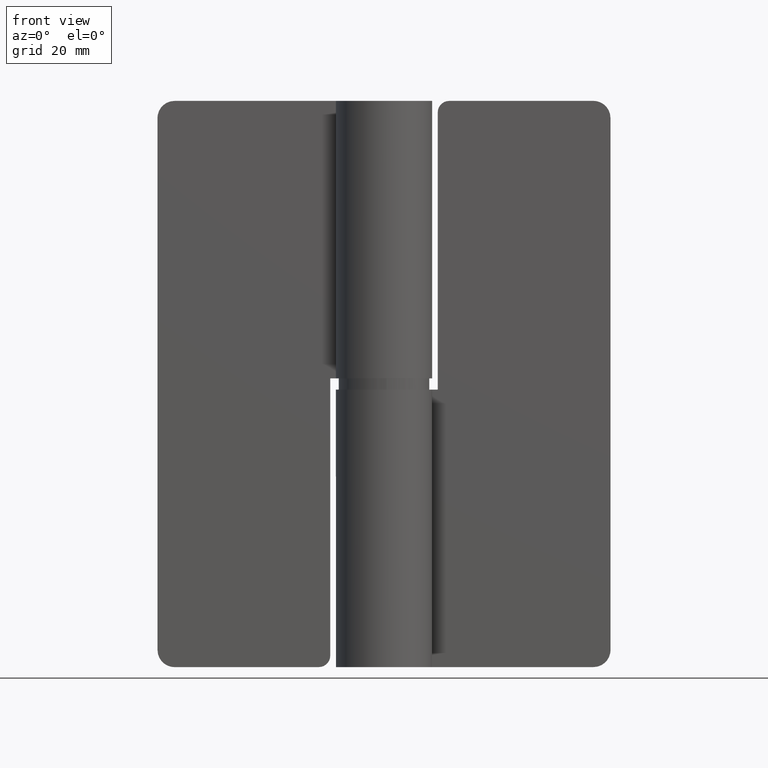
[diagram: clean part render]
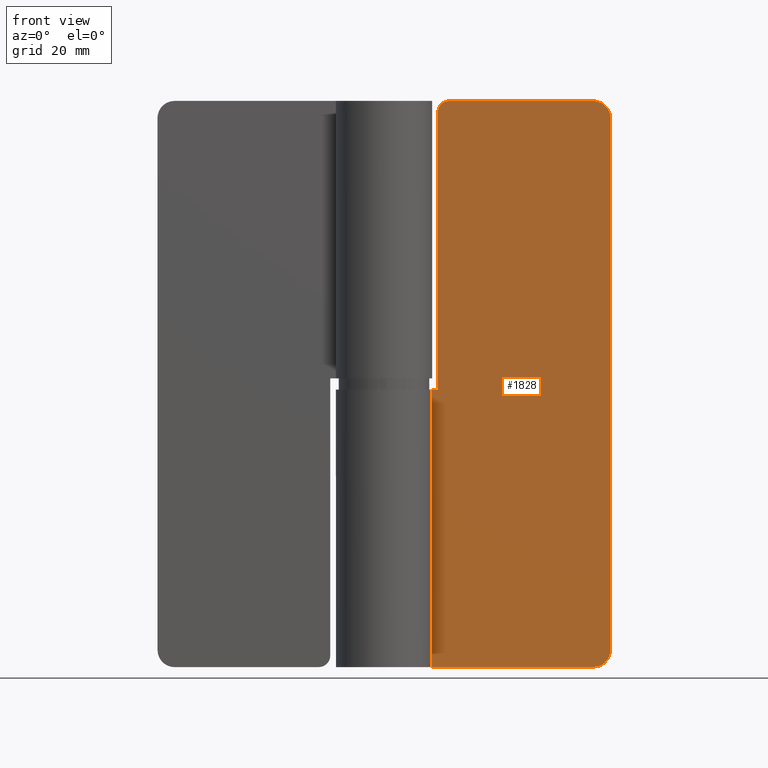
[diagram: same view with one face highlighted and labeled with its STEP entity id]
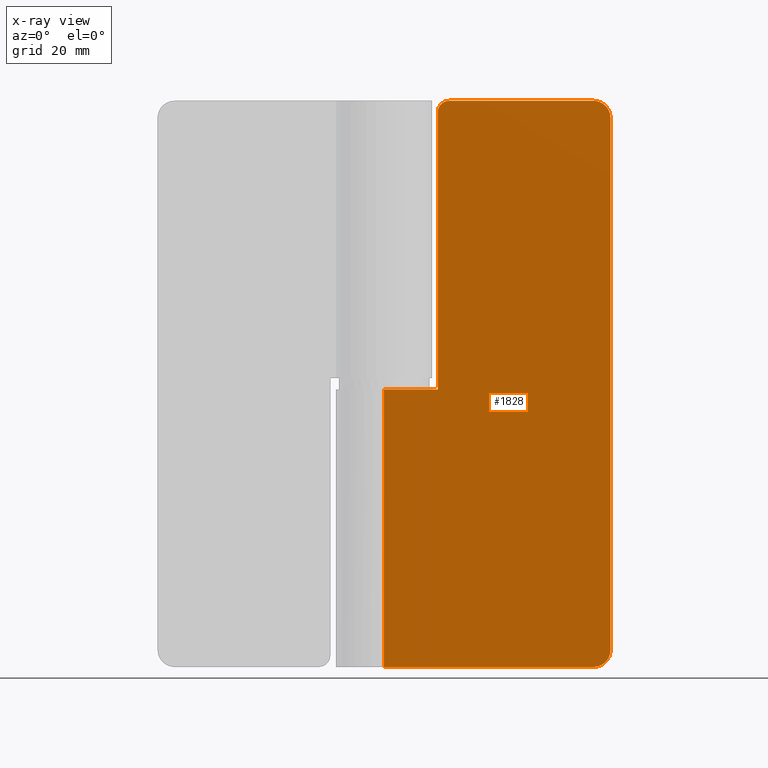
[diagram: x-ray of the same camera — body ghosted, the highlighted face saturated]
A machine part, front view. The second image highlights one B-rep face of the part: STEP entity #1828.
The next image is the same camera in x-ray: the body ghosted, the highlighted face saturated — about 0% of this face is hidden behind the body in this view.
In plain terms, the highlighted face is a freeform B-spline surface patch.
Its self-contained STEP definition (entity closure, byte-faithful):
#1349=CARTESIAN_POINT('',(40.000007999999802,4.0,97.0));
#1350=VERTEX_POINT('',#1349);
#1351=CARTESIAN_POINT('',(37.000007999999802,4.0,100.0));
#1352=VERTEX_POINT('',#1351);
#1353=CARTESIAN_POINT('',(40.000007999999802,4.0,97.0));
#1354=CARTESIAN_POINT('',(40.000007999999795,4.000000000000000,100.0));
#1355=CARTESIAN_POINT('',(37.000007999999802,4.0,100.0));
#1363=(BOUNDED_CURVE()B_SPLINE_CURVE(2,(#1353,#1354,#1355),.UNSPECIFIED.,.F.,.U.)CURVE()GEOMETRIC_REPRESENTATION_ITEM()QUASI_UNIFORM_CURVE()RATIONAL_B_SPLINE_CURVE((1.0,0.707106781186548,1.0))REPRESENTATION_ITEM(''));
#1364=EDGE_CURVE('',#1350,#1352,#1363,.T.);
#1410=CARTESIAN_POINT('',(37.000007999999802,4.0,0.0));
#1411=VERTEX_POINT('',#1410);
#1412=CARTESIAN_POINT('',(40.000007999999802,4.0,3.0));
#1413=VERTEX_POINT('',#1412);
#1414=CARTESIAN_POINT('',(37.000007999999802,4.0,0.0));
#1415=CARTESIAN_POINT('',(40.000007999999795,4.000000000000000,0.0));
#1416=CARTESIAN_POINT('',(40.000007999999802,4.0,3.0));
#1424=(BOUNDED_CURVE()B_SPLINE_CURVE(2,(#1414,#1415,#1416),.UNSPECIFIED.,.F.,.U.)CURVE()GEOMETRIC_REPRESENTATION_ITEM()QUASI_UNIFORM_CURVE()RATIONAL_B_SPLINE_CURVE((1.0,0.707106781186548,1.0))REPRESENTATION_ITEM(''));
#1425=EDGE_CURVE('',#1411,#1413,#1424,.T.);
#1471=CARTESIAN_POINT('',(11.500007999999800,4.0,100.0));
#1472=VERTEX_POINT('',#1471);
#1473=CARTESIAN_POINT('',(9.500007999999809,4.0,98.0));
#1474=VERTEX_POINT('',#1473);
#1475=CARTESIAN_POINT('',(11.500007999999800,4.0,100.0));
#1476=CARTESIAN_POINT('',(9.500007999999800,4.000000000000000,100.0));
#1477=CARTESIAN_POINT('',(9.500007999999800,4.0,98.0));
#1485=(BOUNDED_CURVE()B_SPLINE_CURVE(2,(#1475,#1476,#1477),.UNSPECIFIED.,.F.,.U.)CURVE()GEOMETRIC_REPRESENTATION_ITEM()QUASI_UNIFORM_CURVE()RATIONAL_B_SPLINE_CURVE((1.0,0.707106781186548,1.0))REPRESENTATION_ITEM(''));
#1486=EDGE_CURVE('',#1472,#1474,#1485,.T.);
#1531=CARTESIAN_POINT('',(9.500007999999809,4.0,49.0));
#1532=VERTEX_POINT('',#1531);
#1538=CARTESIAN_POINT('',(9.500007999999809,4.0,49.0));
#1539=CARTESIAN_POINT('',(9.500007999999809,4.0,98.0));
#1540=QUASI_UNIFORM_CURVE('',1,(#1538,#1539),.UNSPECIFIED.,.F.,.U.);
#1541=EDGE_CURVE('',#1532,#1474,#1540,.T.);
#1551=CARTESIAN_POINT('',(0.0,4.0,49.0));
#1552=VERTEX_POINT('',#1551);
#1553=CARTESIAN_POINT('',(0.0,4.0,49.0));
#1554=CARTESIAN_POINT('',(9.500007999999809,4.0,49.0));
#1555=QUASI_UNIFORM_CURVE('',1,(#1553,#1554),.UNSPECIFIED.,.F.,.U.);
#1556=EDGE_CURVE('',#1552,#1532,#1555,.T.);
#1622=CARTESIAN_POINT('',(0.0,4.0,0.0));
#1623=VERTEX_POINT('',#1622);
#1624=CARTESIAN_POINT('',(37.000007999999802,4.0,0.0));
#1625=CARTESIAN_POINT('',(0.0,4.0,0.0));
#1626=QUASI_UNIFORM_CURVE('',1,(#1624,#1625),.UNSPECIFIED.,.F.,.U.);
#1627=EDGE_CURVE('',#1411,#1623,#1626,.T.);
#1761=CARTESIAN_POINT('',(0.0,4.0,0.0));
#1762=CARTESIAN_POINT('',(0.0,4.0,49.0));
#1763=QUASI_UNIFORM_CURVE('',1,(#1761,#1762),.UNSPECIFIED.,.F.,.U.);
#1764=EDGE_CURVE('',#1623,#1552,#1763,.T.);
#1777=CARTESIAN_POINT('',(37.000007999999802,4.0,100.0));
#1778=CARTESIAN_POINT('',(11.500007999999800,4.0,100.0));
#1779=QUASI_UNIFORM_CURVE('',1,(#1777,#1778),.UNSPECIFIED.,.F.,.U.);
#1780=EDGE_CURVE('',#1352,#1472,#1779,.T.);
#1803=CARTESIAN_POINT('',(40.000007999999802,4.0,3.0));
#1804=CARTESIAN_POINT('',(40.000007999999802,4.0,97.0));
#1805=QUASI_UNIFORM_CURVE('',1,(#1803,#1804),.UNSPECIFIED.,.F.,.U.);
#1806=EDGE_CURVE('',#1413,#1350,#1805,.T.);
#1812=CARTESIAN_POINT('',(-1.998000322072211,4.0,-4.994999806180597));
#1813=CARTESIAN_POINT('',(-1.998000322072211,4.0,104.995002488389600));
#1814=CARTESIAN_POINT('',(41.998009394955830,4.0,-4.994999806180597));
#1815=CARTESIAN_POINT('',(41.998009394955830,4.0,104.995002488389600));
#1816=B_SPLINE_SURFACE_WITH_KNOTS('',1,1,((#1812,#1814),(#1813,#1815)),.UNSPECIFIED.,.F.,.F.,.U.,(2,2),(2,2),(0.0,109.990002294570200),(0.0,43.996009717028038),.UNSPECIFIED.);
#1817=ORIENTED_EDGE('',*,*,#1364,.T.);
#1818=ORIENTED_EDGE('',*,*,#1780,.T.);
#1819=ORIENTED_EDGE('',*,*,#1486,.T.);
#1820=ORIENTED_EDGE('',*,*,#1541,.F.);
#1821=ORIENTED_EDGE('',*,*,#1556,.F.);
#1822=ORIENTED_EDGE('',*,*,#1764,.F.);
#1823=ORIENTED_EDGE('',*,*,#1627,.F.);
#1824=ORIENTED_EDGE('',*,*,#1425,.T.);
#1825=ORIENTED_EDGE('',*,*,#1806,.T.);
#1826=EDGE_LOOP('',(#1817,#1818,#1819,#1820,#1821,#1822,#1823,#1824,#1825));
#1827=FACE_OUTER_BOUND('',#1826,.T.);
#1828=ADVANCED_FACE('',(#1827),#1816,.F.);